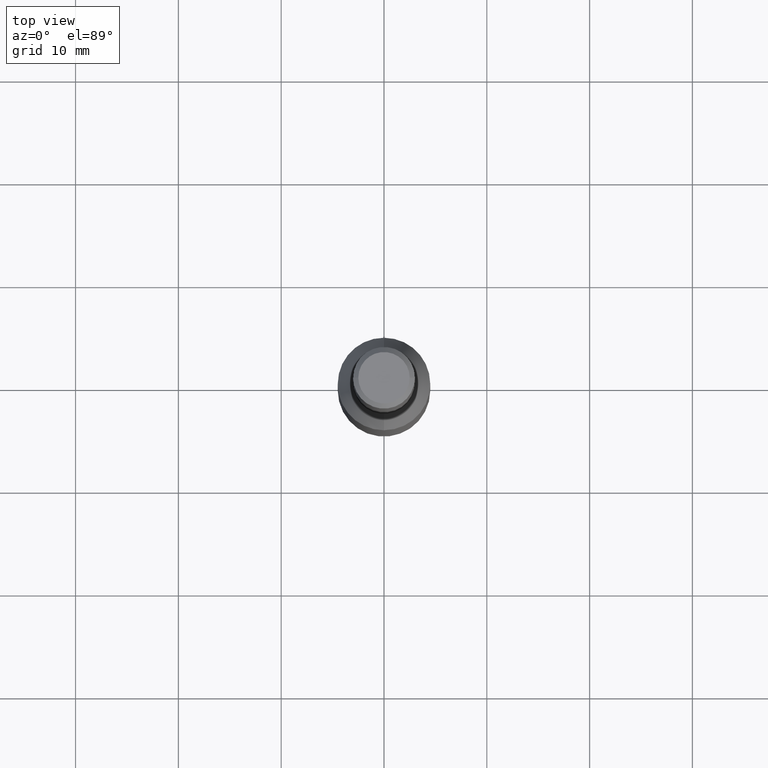
[diagram: clean part render]
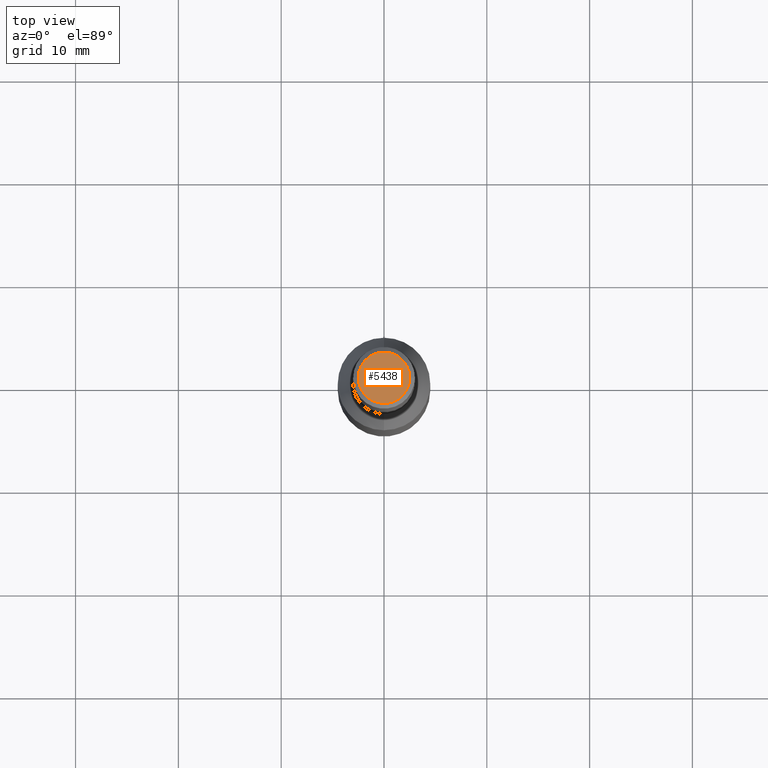
[diagram: same view with one face highlighted and labeled with its STEP entity id]
A machine part, top view. The second image highlights one B-rep face of the part: STEP entity #5438.
In plain terms, the highlighted planar face has unit normal (0, 0, 1).
Its self-contained STEP definition (entity closure, byte-faithful):
#409 = CIRCLE ( 'NONE', #10584, 2.499999999999995100 ) ;
#1310 = DIRECTION ( 'NONE',  ( 0.0000000000000000000, 0.0000000000000000000, 1.000000000000000000 ) ) ;
#2998 = FACE_OUTER_BOUND ( 'NONE', #6635, .T. ) ;
#3369 = VERTEX_POINT ( 'NONE', #4783 ) ;
#3629 = AXIS2_PLACEMENT_3D ( 'NONE', #10847, #1310, #12923 ) ;
#3938 = DIRECTION ( 'NONE',  ( 1.000000000000000000, 0.0000000000000000000, -0.0000000000000000000 ) ) ;
#4783 = CARTESIAN_POINT ( 'NONE',  ( 2.499999999999995100, 3.367778697655218500E-016, 70.00000000000000000 ) ) ;
#4855 = CARTESIAN_POINT ( 'NONE',  ( 0.0000000000000000000, 0.0000000000000000000, 70.00000000000000000 ) ) ;
#4947 = PLANE ( 'NONE',  #6965 ) ;
#4994 = DIRECTION ( 'NONE',  ( 1.000000000000000000, 0.0000000000000000000, 0.0000000000000000000 ) ) ;
#5044 = DIRECTION ( 'NONE',  ( 0.0000000000000000000, 0.0000000000000000000, 1.000000000000000000 ) ) ;
#5090 = CARTESIAN_POINT ( 'NONE',  ( 0.0000000000000000000, 0.0000000000000000000, 70.00000000000000000 ) ) ;
#5438 = ADVANCED_FACE ( 'NONE', ( #2998 ), #4947, .T. ) ;
#5449 = ORIENTED_EDGE ( 'NONE', *, *, #9874, .T. ) ;
#5991 = DIRECTION ( 'NONE',  ( 0.0000000000000000000, 0.0000000000000000000, 1.000000000000000000 ) ) ;
#6635 = EDGE_LOOP ( 'NONE', ( #5449, #6884 ) ) ;
#6884 = ORIENTED_EDGE ( 'NONE', *, *, #9187, .T. ) ;
#6965 = AXIS2_PLACEMENT_3D ( 'NONE', #4855, #5044, #3938 ) ;
#8345 = CARTESIAN_POINT ( 'NONE',  ( -2.499999999999995100, 0.0000000000000000000, 70.00000000000000000 ) ) ;
#9187 = EDGE_CURVE ( 'NONE', #3369, #11924, #13620, .T. ) ;
#9874 = EDGE_CURVE ( 'NONE', #11924, #3369, #409, .T. ) ;
#10584 = AXIS2_PLACEMENT_3D ( 'NONE', #5090, #5991, #4994 ) ;
#10847 = CARTESIAN_POINT ( 'NONE',  ( 0.0000000000000000000, 0.0000000000000000000, 70.00000000000000000 ) ) ;
#11924 = VERTEX_POINT ( 'NONE', #8345 ) ;
#12923 = DIRECTION ( 'NONE',  ( 1.000000000000000000, 0.0000000000000000000, 0.0000000000000000000 ) ) ;
#13620 = CIRCLE ( 'NONE', #3629, 2.499999999999995100 ) ;